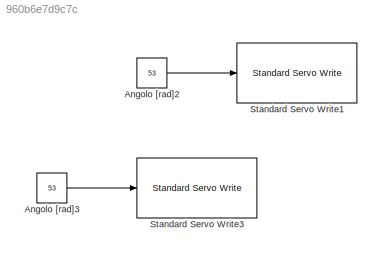
MODEL slx_960b6e7d9c7c
KIND model
BLOCK [Constant] Angolo [rad]2
  Value = 53
BLOCK [Constant] Angolo [rad]3
  Value = 53
BLOCK [Reference] Standard Servo Write1  REF=arduinolib/Standard Servo Write
  Ports = [1]
  SourceBlock = arduinolib/Standard Servo Write
  SourceType = Arduino Standard Servo Write
  pinNumber = 9
BLOCK [Reference] Standard Servo Write3  REF=arduinolib/Standard Servo Write
  Ports = [1]
  SourceBlock = arduinolib/Standard Servo Write
  SourceType = Arduino Standard Servo Write
  pinNumber = 10
LINE Angolo [rad]2:1 -> Standard Servo Write1:1
LINE Angolo [rad]3:1 -> Standard Servo Write3:1
